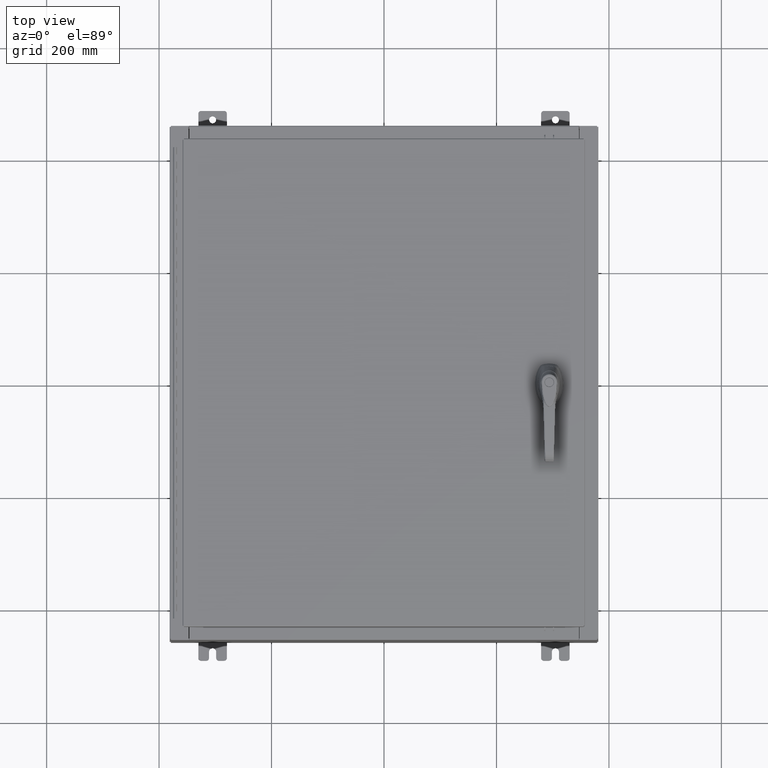
[diagram: clean part render]
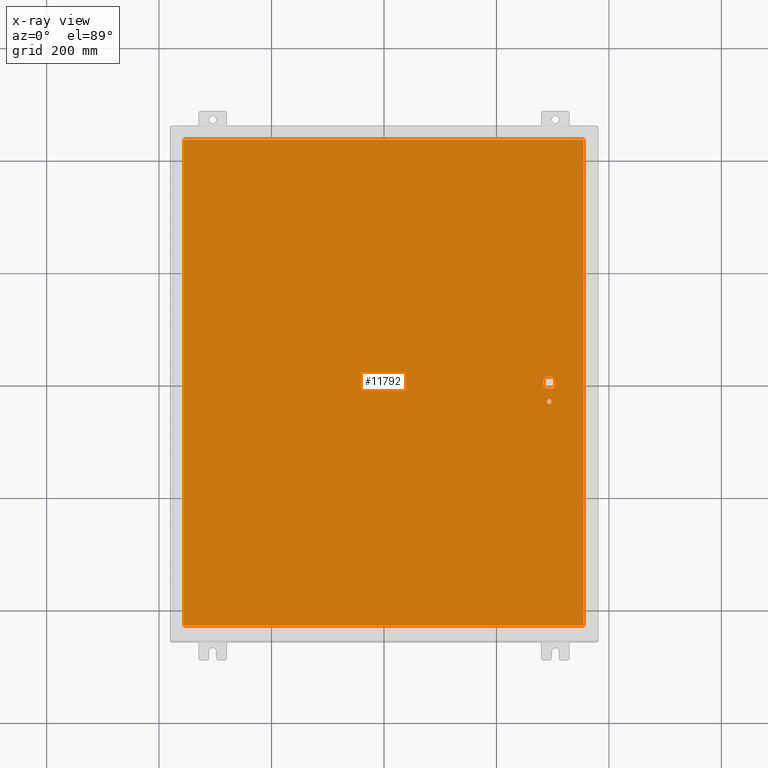
[diagram: x-ray — body ghosted, one internal face saturated and labeled with its STEP entity id]
A machine part, top view, then the same camera in x-ray: the body is ghosted and one INTERNAL B-rep face — a face not visible from any outside direction — is saturated and labeled: STEP entity #11792.
In plain terms, the highlighted planar face has unit normal (0, 0, -1).
Its self-contained STEP definition (entity closure, byte-faithful):
#2112 = DIRECTION ( 'NONE',  ( 0.0000000000000000000, 1.000000000000000000, 0.0000000000000000000 ) ) ;
#3317 = AXIS2_PLACEMENT_3D ( 'NONE', #70712, #61072, #32521 ) ;
#4313 = CARTESIAN_POINT ( 'NONE',  ( 11.57799999999999400, 0.0000000000000000000, -0.07470000000000003000 ) ) ;
#4632 = CARTESIAN_POINT ( 'NONE',  ( 13.99029999999999200, 17.00630000000000300, -0.07470000000000000300 ) ) ;
#5782 = EDGE_LOOP ( 'NONE', ( #70839, #67922, #22417, #46715 ) ) ;
#8127 = CARTESIAN_POINT ( 'NONE',  ( -13.99030000000000700, 17.00630000000000300, -0.07470000000000000300 ) ) ;
#8430 = EDGE_CURVE ( 'NONE', #76998, #110566, #71463, .T. ) ;
#10643 = VERTEX_POINT ( 'NONE', #17818 ) ;
#11792 = ADVANCED_FACE ( 'NONE', ( #67964, #118979, #115921 ), #22853, .T. ) ;
#12219 = CARTESIAN_POINT ( 'NONE',  ( 11.57799999999999400, -1.338000000000000100, -0.07470000000000003000 ) ) ;
#13743 = VERTEX_POINT ( 'NONE', #19017 ) ;
#13758 = CARTESIAN_POINT ( 'NONE',  ( 11.98099999999992000, -0.2002273707563067300, -0.07470000000000003000 ) ) ;
#13891 = DIRECTION ( 'NONE',  ( -1.000000000000000000, -5.329070518200740300E-015, 0.0000000000000000000 ) ) ;
#15366 = ORIENTED_EDGE ( 'NONE', *, *, #54621, .T. ) ;
#16510 = EDGE_LOOP ( 'NONE', ( #116734, #91430 ) ) ;
#17107 = DIRECTION ( 'NONE',  ( -0.0000000000000000000, -0.0000000000000000000, 1.000000000000000000 ) ) ;
#17123 = DIRECTION ( 'NONE',  ( 0.0000000000000000000, -1.000000000000000000, 0.0000000000000000000 ) ) ;
#17818 = CARTESIAN_POINT ( 'NONE',  ( 11.37777262924368300, -0.4029999999999250300, -0.07470000000000003000 ) ) ;
#18950 = ORIENTED_EDGE ( 'NONE', *, *, #59364, .T. ) ;
#19017 = CARTESIAN_POINT ( 'NONE',  ( 11.77822737075630300, -0.4029999999999252000, -0.07470000000000003000 ) ) ;
#20399 = EDGE_CURVE ( 'NONE', #13743, #86302, #88738, .T. ) ;
#21802 = ORIENTED_EDGE ( 'NONE', *, *, #20399, .T. ) ;
#21886 = DIRECTION ( 'NONE',  ( -1.000000000000000000, 0.0000000000000000000, 0.0000000000000000000 ) ) ;
#22417 = ORIENTED_EDGE ( 'NONE', *, *, #59069, .F. ) ;
#22853 = PLANE ( 'NONE',  #3317 ) ;
#22862 = EDGE_CURVE ( 'NONE', #89905, #35555, #101926, .T. ) ;
#26575 = ORIENTED_EDGE ( 'NONE', *, *, #37446, .T. ) ;
#26783 = DIRECTION ( 'NONE',  ( 5.457491617345625000E-015, -1.000000000000000000, 0.0000000000000000000 ) ) ;
#26869 = EDGE_CURVE ( 'NONE', #89905, #86302, #123394, .T. ) ;
#28360 = LINE ( 'NONE', #89895, #76416 ) ;
#28497 = CARTESIAN_POINT ( 'NONE',  ( 11.17500000000006600, 0.2002273707563075900, -0.07470000000000003000 ) ) ;
#29919 = CARTESIAN_POINT ( 'NONE',  ( 11.40649999999999200, -1.338000000000000100, -0.07470000000000003000 ) ) ;
#30492 = VERTEX_POINT ( 'NONE', #93658 ) ;
#32521 = DIRECTION ( 'NONE',  ( -1.000000000000000000, 0.0000000000000000000, -0.0000000000000000000 ) ) ;
#32616 = ORIENTED_EDGE ( 'NONE', *, *, #26869, .F. ) ;
#33571 = CARTESIAN_POINT ( 'NONE',  ( 0.0000000000000000000, -0.4029999999999252000, -0.07470000000000003000 ) ) ;
#34398 = CARTESIAN_POINT ( 'NONE',  ( 11.57799999999999400, 0.0000000000000000000, -0.07470000000000003000 ) ) ;
#35196 = CIRCLE ( 'NONE', #104450, 0.1715000000000011500 ) ;
#35370 = CARTESIAN_POINT ( 'NONE',  ( 11.77822737075630300, 0.4029999999999250300, -0.07470000000000003000 ) ) ;
#35555 = VERTEX_POINT ( 'NONE', #35370 ) ;
#36517 = DIRECTION ( 'NONE',  ( 1.000000000000000000, -0.0000000000000000000, -0.0000000000000000000 ) ) ;
#36886 = CARTESIAN_POINT ( 'NONE',  ( 11.57799999999999400, 0.0000000000000000000, -0.07470000000000003000 ) ) ;
#37446 = EDGE_CURVE ( 'NONE', #89670, #100197, #80616, .T. ) ;
#38608 = CIRCLE ( 'NONE', #62887, 0.4499999999999168000 ) ;
#41738 = LINE ( 'NONE', #99863, #67212 ) ;
#42106 = DIRECTION ( 'NONE',  ( -1.000000000000000000, 0.0000000000000000000, 0.0000000000000000000 ) ) ;
#43250 = ORIENTED_EDGE ( 'NONE', *, *, #115161, .T. ) ;
#44051 = DIRECTION ( 'NONE',  ( -1.000000000000000000, -1.776356839400246700E-015, 0.0000000000000000000 ) ) ;
#44946 = VECTOR ( 'NONE', #122541, 39.37007874015748100 ) ;
#46557 = DIRECTION ( 'NONE',  ( -1.000000000000000000, -1.776356839400246700E-015, 0.0000000000000000000 ) ) ;
#46715 = ORIENTED_EDGE ( 'NONE', *, *, #102135, .F. ) ;
#48314 = DIRECTION ( 'NONE',  ( -0.0000000000000000000, -0.0000000000000000000, 1.000000000000000000 ) ) ;
#52664 = AXIS2_PLACEMENT_3D ( 'NONE', #36886, #104012, #46557 ) ;
#52912 = CARTESIAN_POINT ( 'NONE',  ( 11.17500000000006600, -0.2002273707563079800, -0.07470000000000003000 ) ) ;
#54621 = EDGE_CURVE ( 'NONE', #10643, #13743, #115786, .T. ) ;
#57855 = EDGE_CURVE ( 'NONE', #114057, #66963, #110944, .T. ) ;
#59069 = EDGE_CURVE ( 'NONE', #81969, #30492, #41738, .T. ) ;
#59364 = EDGE_CURVE ( 'NONE', #100197, #78880, #103267, .T. ) ;
#60687 = AXIS2_PLACEMENT_3D ( 'NONE', #74616, #17107, #84273 ) ;
#61072 = DIRECTION ( 'NONE',  ( 0.0000000000000000000, 0.0000000000000000000, -1.000000000000000000 ) ) ;
#62887 = AXIS2_PLACEMENT_3D ( 'NONE', #34398, #101522, #44051 ) ;
#65088 = CARTESIAN_POINT ( 'NONE',  ( 13.99029999999999200, 17.00630000000000300, -0.07470000000000129300 ) ) ;
#66963 = VERTEX_POINT ( 'NONE', #29919 ) ;
#67212 = VECTOR ( 'NONE', #90220, 39.37007874015748100 ) ;
#67922 = ORIENTED_EDGE ( 'NONE', *, *, #77105, .F. ) ;
#67964 = FACE_BOUND ( 'NONE', #16510, .T. ) ;
#69239 = CARTESIAN_POINT ( 'NONE',  ( 13.99029999999999200, -17.00630000000000000, -0.07470000000000019700 ) ) ;
#70429 = LINE ( 'NONE', #65088, #44946 ) ;
#70712 = CARTESIAN_POINT ( 'NONE',  ( 0.0000000000000000000, 0.0000000000000000000, -0.07470000000000000300 ) ) ;
#70839 = ORIENTED_EDGE ( 'NONE', *, *, #8430, .F. ) ;
#71396 = DIRECTION ( 'NONE',  ( -0.0000000000000000000, -0.0000000000000000000, 1.000000000000000000 ) ) ;
#71463 = LINE ( 'NONE', #69239, #122488 ) ;
#72065 = CARTESIAN_POINT ( 'NONE',  ( 11.98099999999992000, 0.2002273707563075900, -0.07470000000000003000 ) ) ;
#72175 = AXIS2_PLACEMENT_3D ( 'NONE', #105786, #48314, #115382 ) ;
#73051 = CARTESIAN_POINT ( 'NONE',  ( 13.99029999999999200, -17.00630000000000000, -0.07470000000000000300 ) ) ;
#74616 = CARTESIAN_POINT ( 'NONE',  ( 11.57799999999999400, -1.338000000000000100, -0.07470000000000003000 ) ) ;
#74713 = VECTOR ( 'NONE', #17123, 39.37007874015748100 ) ;
#76416 = VECTOR ( 'NONE', #42106, 39.37007874015748100 ) ;
#76998 = VERTEX_POINT ( 'NONE', #73051 ) ;
#77105 = EDGE_CURVE ( 'NONE', #30492, #76998, #123825, .T. ) ;
#78213 = EDGE_CURVE ( 'NONE', #66963, #114057, #35196, .T. ) ;
#78880 = VERTEX_POINT ( 'NONE', #52912 ) ;
#79381 = DIRECTION ( 'NONE',  ( -0.0000000000000000000, -0.0000000000000000000, 1.000000000000000000 ) ) ;
#80616 = CIRCLE ( 'NONE', #72175, 0.4499999999999168000 ) ;
#81397 = DIRECTION ( 'NONE',  ( 1.000000000000000000, 0.0000000000000000000, 0.0000000000000000000 ) ) ;
#81969 = VERTEX_POINT ( 'NONE', #8127 ) ;
#84273 = DIRECTION ( 'NONE',  ( -1.000000000000000000, 0.0000000000000000000, 0.0000000000000000000 ) ) ;
#84957 = CARTESIAN_POINT ( 'NONE',  ( 11.74949999999999400, -1.338000000000000100, -0.07470000000000003000 ) ) ;
#86302 = VERTEX_POINT ( 'NONE', #13758 ) ;
#87680 = EDGE_LOOP ( 'NONE', ( #21802, #32616, #98512, #92639, #26575, #18950, #43250, #15366 ) ) ;
#88738 = CIRCLE ( 'NONE', #52664, 0.4499999999999168000 ) ;
#89670 = VERTEX_POINT ( 'NONE', #103229 ) ;
#89895 = CARTESIAN_POINT ( 'NONE',  ( 0.0000000000000000000, 0.4029999999999252000, -0.07470000000000003000 ) ) ;
#89905 = VERTEX_POINT ( 'NONE', #72065 ) ;
#90220 = DIRECTION ( 'NONE',  ( 0.0000000000000000000, -1.000000000000000000, 0.0000000000000000000 ) ) ;
#91430 = ORIENTED_EDGE ( 'NONE', *, *, #78213, .T. ) ;
#92639 = ORIENTED_EDGE ( 'NONE', *, *, #93308, .T. ) ;
#93308 = EDGE_CURVE ( 'NONE', #35555, #89670, #28360, .T. ) ;
#93658 = CARTESIAN_POINT ( 'NONE',  ( -13.99030000000000700, -17.00630000000000000, -0.07470000000000000300 ) ) ;
#93876 = CARTESIAN_POINT ( 'NONE',  ( 11.98099999999992000, 6.538620706741751200E-014, -0.07470000000000003000 ) ) ;
#93942 = CARTESIAN_POINT ( 'NONE',  ( -13.99030000000000700, -17.00630000000000000, -0.07470000000000019700 ) ) ;
#98512 = ORIENTED_EDGE ( 'NONE', *, *, #22862, .T. ) ;
#99863 = CARTESIAN_POINT ( 'NONE',  ( -13.99030000000000700, 17.00630000000000000, -0.07470000000000019700 ) ) ;
#100197 = VERTEX_POINT ( 'NONE', #28497 ) ;
#101522 = DIRECTION ( 'NONE',  ( -0.0000000000000000000, -0.0000000000000000000, 1.000000000000000000 ) ) ;
#101926 = CIRCLE ( 'NONE', #109075, 0.4499999999999168000 ) ;
#102135 = EDGE_CURVE ( 'NONE', #110566, #81969, #70429, .T. ) ;
#103229 = CARTESIAN_POINT ( 'NONE',  ( 11.37777262924368300, 0.4029999999999252000, -0.07470000000000003000 ) ) ;
#103267 = LINE ( 'NONE', #112805, #74713 ) ;
#103942 = VECTOR ( 'NONE', #26783, 39.37007874015748100 ) ;
#104012 = DIRECTION ( 'NONE',  ( -0.0000000000000000000, -0.0000000000000000000, 1.000000000000000000 ) ) ;
#104450 = AXIS2_PLACEMENT_3D ( 'NONE', #12219, #79381, #21886 ) ;
#105786 = CARTESIAN_POINT ( 'NONE',  ( 11.57799999999999400, 0.0000000000000000000, -0.07470000000000003000 ) ) ;
#109075 = AXIS2_PLACEMENT_3D ( 'NONE', #4313, #71396, #13891 ) ;
#110566 = VERTEX_POINT ( 'NONE', #4632 ) ;
#110944 = CIRCLE ( 'NONE', #60687, 0.1715000000000011500 ) ;
#112805 = CARTESIAN_POINT ( 'NONE',  ( 11.17500000000006600, 0.0000000000000000000, -0.07470000000000003000 ) ) ;
#112851 = VECTOR ( 'NONE', #81397, 39.37007874015748100 ) ;
#114057 = VERTEX_POINT ( 'NONE', #84957 ) ;
#115161 = EDGE_CURVE ( 'NONE', #78880, #10643, #38608, .T. ) ;
#115382 = DIRECTION ( 'NONE',  ( -1.000000000000000000, -5.329070518200740300E-015, 0.0000000000000000000 ) ) ;
#115786 = LINE ( 'NONE', #33571, #112851 ) ;
#115921 = FACE_BOUND ( 'NONE', #87680, .T. ) ;
#116734 = ORIENTED_EDGE ( 'NONE', *, *, #57855, .T. ) ;
#118979 = FACE_OUTER_BOUND ( 'NONE', #5782, .T. ) ;
#120859 = VECTOR ( 'NONE', #36517, 39.37007874015748100 ) ;
#122488 = VECTOR ( 'NONE', #2112, 39.37007874015748100 ) ;
#122541 = DIRECTION ( 'NONE',  ( -1.000000000000000000, -0.0000000000000000000, -0.0000000000000000000 ) ) ;
#123394 = LINE ( 'NONE', #93876, #103942 ) ;
#123825 = LINE ( 'NONE', #93942, #120859 ) ;